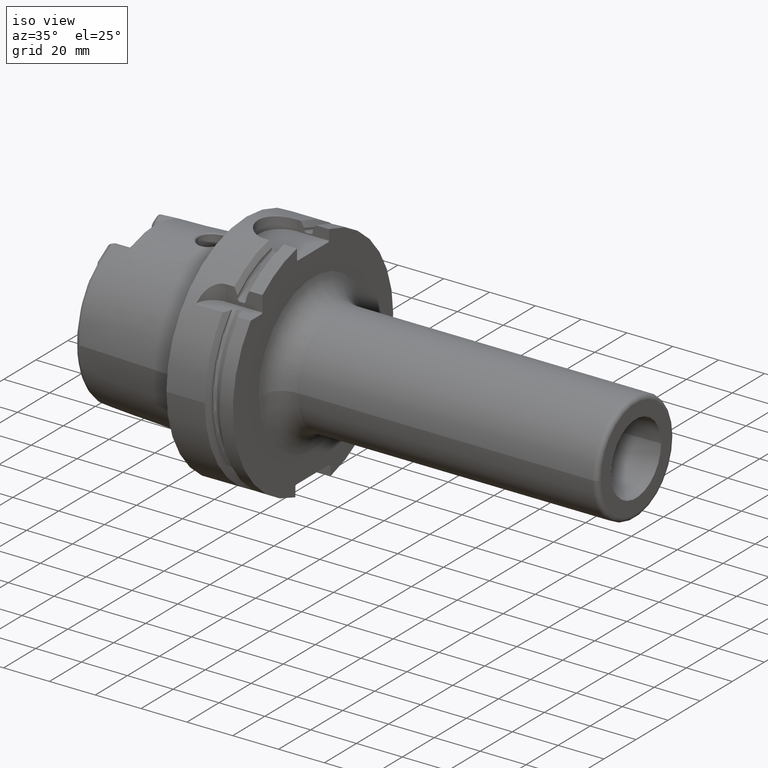
[diagram: clean part render]
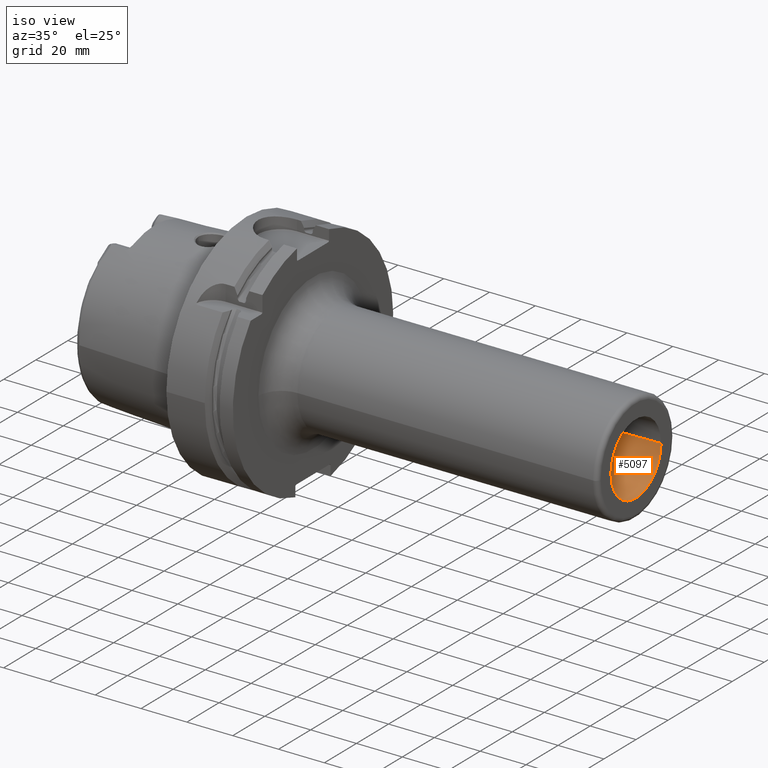
[diagram: same view with one face highlighted and labeled with its STEP entity id]
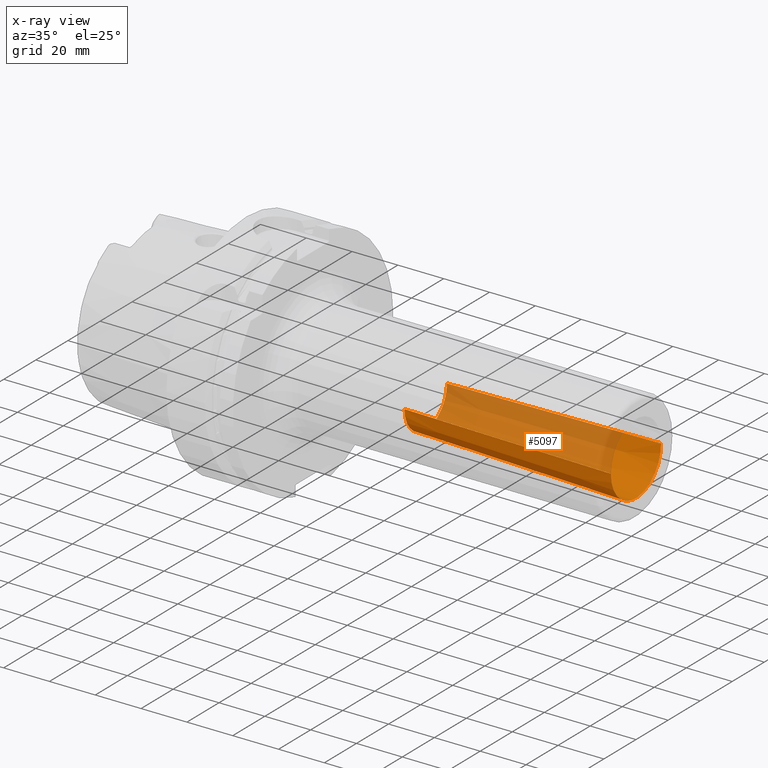
[diagram: x-ray of the same camera — body ghosted, the highlighted face saturated]
A machine part, iso view. The second image highlights one B-rep face of the part: STEP entity #5097.
The next image is the same camera in x-ray: the body ghosted, the highlighted face saturated — about 52% of this face is hidden behind the body in this view.
In plain terms, the highlighted conical surface has half-angle 1.487 deg.
Its self-contained STEP definition (entity closure, byte-faithful):
#1873=CARTESIAN_POINT('',(1.7E2,0.E0,0.E0));
#1874=DIRECTION('',(1.E0,0.E0,0.E0));
#1875=DIRECTION('',(0.E0,-1.E0,0.E0));
#1876=AXIS2_PLACEMENT_3D('',#1873,#1874,#1875);
#1878=DIRECTION('',(-9.996630121096E-1,2.595885629023E-2,0.E0));
#1879=VECTOR('',#1878,9.181837494501E1);
#1880=CARTESIAN_POINT('',(1.7E2,-1.56335E1,0.E0));
#1881=LINE('',#1880,#1879);
#1882=DIRECTION('',(-9.996630121096E-1,-2.595885629023E-2,0.E0));
#1883=VECTOR('',#1882,9.181837494501E1);
#1884=CARTESIAN_POINT('',(1.7E2,1.56335E1,0.E0));
#1885=LINE('',#1884,#1883);
#1890=CARTESIAN_POINT('',(7.821256673546E1,0.E0,0.E0));
#1891=DIRECTION('',(-1.E0,0.E0,0.E0));
#1892=DIRECTION('',(0.E0,1.E0,0.E0));
#1893=AXIS2_PLACEMENT_3D('',#1890,#1891,#1892);
#3141=CARTESIAN_POINT('',(7.821256673546E1,1.325E1,0.E0));
#3143=VERTEX_POINT('',#3141);
#3145=CARTESIAN_POINT('',(7.821256673546E1,-1.325E1,0.E0));
#3147=VERTEX_POINT('',#3145);
#3149=CARTESIAN_POINT('',(1.7E2,1.56335E1,0.E0));
#3150=CARTESIAN_POINT('',(1.7E2,-1.56335E1,0.E0));
#3151=VERTEX_POINT('',#3149);
#3152=VERTEX_POINT('',#3150);
#5085=CARTESIAN_POINT('',(1.241062833677E2,0.E0,0.E0));
#5086=DIRECTION('',(1.E0,0.E0,0.E0));
#5087=DIRECTION('',(0.E0,-1.E0,0.E0));
#5088=AXIS2_PLACEMENT_3D('',#5085,#5086,#5087);
#5089=CONICAL_SURFACE('',#5088,1.444175E1,1.4875E0);
#5090=ORIENTED_EDGE('',*,*,#5065,.F.);
#5091=ORIENTED_EDGE('',*,*,#5080,.T.);
#5093=ORIENTED_EDGE('',*,*,#5092,.F.);
#5094=ORIENTED_EDGE('',*,*,#5076,.F.);
#5095=EDGE_LOOP('',(#5090,#5091,#5093,#5094));
#5096=FACE_OUTER_BOUND('',#5095,.F.);
#5097=ADVANCED_FACE('',(#5096),#5089,.F.);
#1877=CIRCLE('',#1876,1.56335E1);
#1894=CIRCLE('',#1893,1.325E1);
#5065=EDGE_CURVE('',#3152,#3151,#1877,.T.);
#5076=EDGE_CURVE('',#3151,#3143,#1885,.T.);
#5080=EDGE_CURVE('',#3152,#3147,#1881,.T.);
#5092=EDGE_CURVE('',#3143,#3147,#1894,.T.);